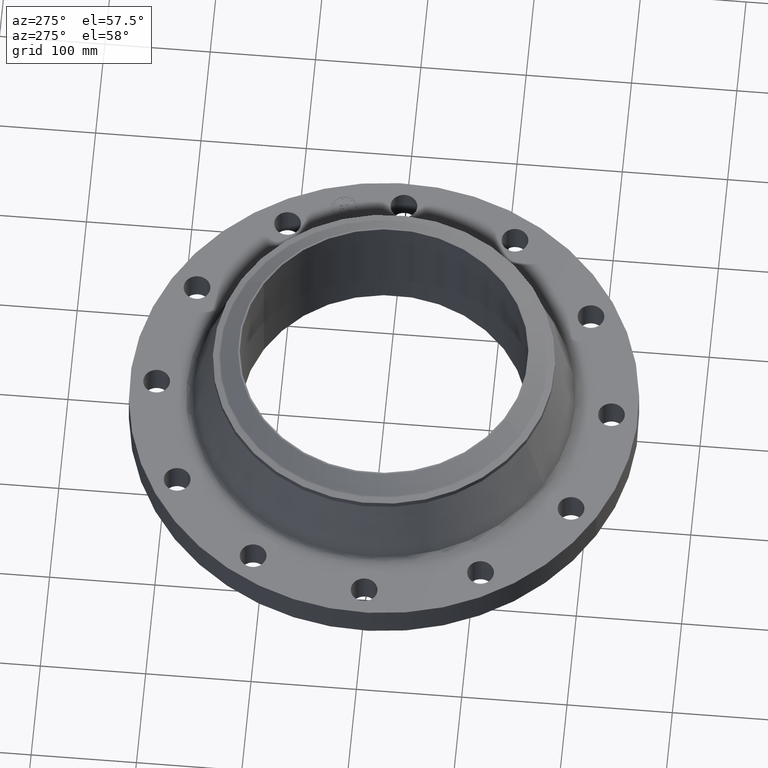
[diagram: clean part render]
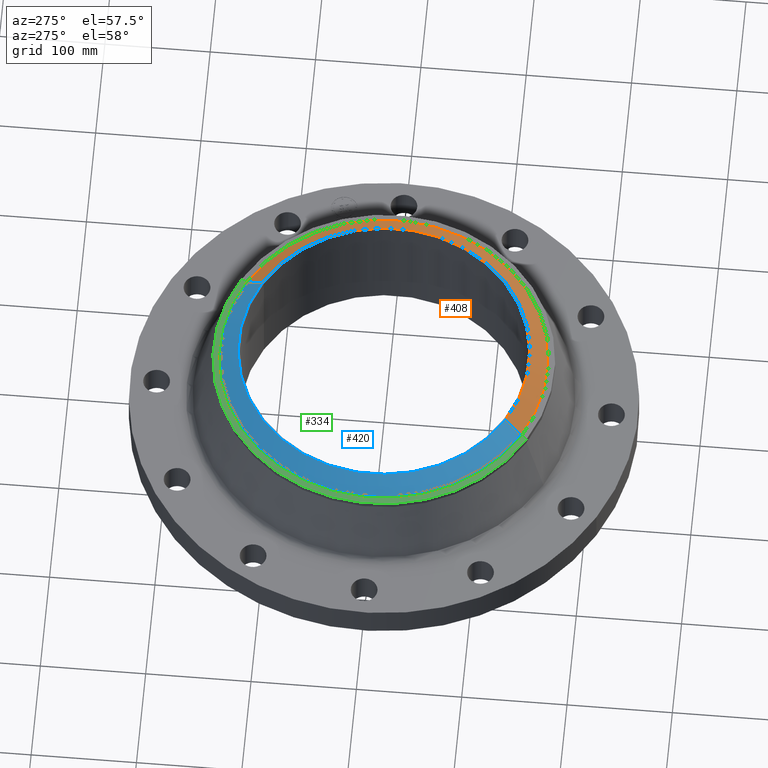
[diagram: same view with three faces highlighted in distinct colors, each labeled with its STEP entity id]
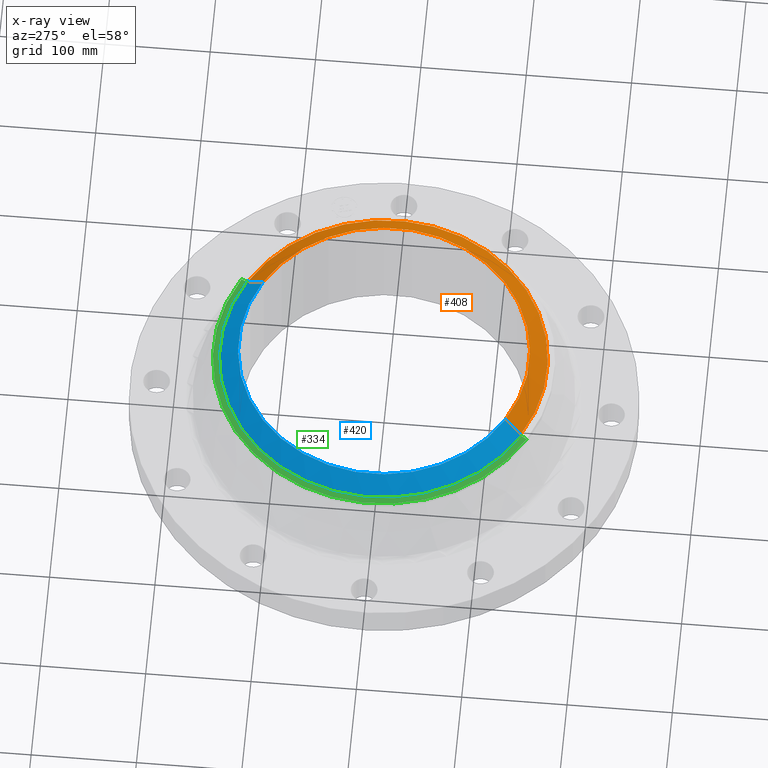
[diagram: x-ray of the same camera — body ghosted, the three highlighted faces saturated]
A machine part, auxiliary view with three faces highlighted in distinct colors.
The next image is the same camera in x-ray (body ghosted, the three faces saturated) — at least one of them is partly hidden behind the body in this view.
Their STEP definitions:

[orange] entity #408 — the highlighted conical surface has half-angle 52.5 deg.
#356=AXIS2_PLACEMENT_3D('Circle Axis2P3D',#354,#355,$) ;
#381=AXIS2_PLACEMENT_3D('Cone Axis2P3D',#378,#379,#380) ;
#399=AXIS2_PLACEMENT_3D('Circle Axis2P3D',#397,#398,$) ;
#344=CARTESIAN_POINT('Vertex',(-2.92484742452,-5.35389729846,3.99108306753)) ;
#351=CARTESIAN_POINT('Vertex',(2.92484742452,5.35389729846,3.99108306753)) ;
#354=CARTESIAN_POINT('Axis2P3D Location',(0.,0.,3.99108306753)) ;
#378=CARTESIAN_POINT('Axis2P3D Location',(0.,0.,4.50000000002)) ;
#383=CARTESIAN_POINT('Line Origine',(-2.76586189534,-5.06287623938,4.24554153377)) ;
#387=CARTESIAN_POINT('Vertex',(-2.60687636617,-4.7718551803,4.50000000002)) ;
#390=CARTESIAN_POINT('Line Origine',(2.76586189534,5.06287623938,4.24554153377)) ;
#394=CARTESIAN_POINT('Vertex',(2.60687636617,4.7718551803,4.50000000002)) ;
#397=CARTESIAN_POINT('Axis2P3D Location',(0.,0.,4.50000000002)) ;
#355=DIRECTION('Axis2P3D Direction',(0.,-0.,-0.0393700787402)) ;
#379=DIRECTION('Axis2P3D Direction',(-0.,-0.,-0.0393700787402)) ;
#380=DIRECTION('Axis2P3D XDirection',(-0.0188750212049,-0.0345504945626,0.)) ;
#384=DIRECTION('Vector Direction',(-0.014974561121,-0.02741075027,-0.023966985394)) ;
#391=DIRECTION('Vector Direction',(0.014974561121,0.02741075027,-0.023966985394)) ;
#398=DIRECTION('Axis2P3D Direction',(0.,-0.,-0.0393700787402)) ;
#385=VECTOR('Line Direction',#384,0.0393700787402) ;
#392=VECTOR('Line Direction',#391,0.0393700787402) ;
#403=ORIENTED_EDGE('',*,*,#389,.T.) ;
#404=ORIENTED_EDGE('',*,*,#358,.F.) ;
#405=ORIENTED_EDGE('',*,*,#396,.F.) ;
#406=ORIENTED_EDGE('',*,*,#401,.T.) ;
#408=ADVANCED_FACE('PartBody',(#407),#382,.T.) ;
#357=CIRCLE('generated circle',#356,6.10073345911) ;
#400=CIRCLE('generated circle',#399,5.43750000002) ;
#382=CONICAL_SURFACE('Cone',#381,5.43750000002,0.916297857297) ;
#358=EDGE_CURVE('',#352,#345,#357,.T.) ;
#389=EDGE_CURVE('',#388,#345,#386,.T.) ;
#396=EDGE_CURVE('',#395,#352,#393,.T.) ;
#401=EDGE_CURVE('',#395,#388,#400,.T.) ;
#402=EDGE_LOOP('',(#403,#404,#405,#406)) ;
#407=FACE_OUTER_BOUND('',#402,.T.) ;
#386=LINE('Line',#383,#385) ;
#393=LINE('Line',#390,#392) ;
#345=VERTEX_POINT('',#344) ;
#352=VERTEX_POINT('',#351) ;
#388=VERTEX_POINT('',#387) ;
#395=VERTEX_POINT('',#394) ;

[blue] entity #420 — the highlighted conical surface has half-angle 52.5 deg.
#368=AXIS2_PLACEMENT_3D('Circle Axis2P3D',#366,#367,$) ;
#381=AXIS2_PLACEMENT_3D('Cone Axis2P3D',#378,#379,#380) ;
#411=AXIS2_PLACEMENT_3D('Circle Axis2P3D',#409,#410,$) ;
#344=CARTESIAN_POINT('Vertex',(-2.92484742452,-5.35389729846,3.99108306753)) ;
#351=CARTESIAN_POINT('Vertex',(2.92484742452,5.35389729846,3.99108306753)) ;
#366=CARTESIAN_POINT('Axis2P3D Location',(0.,0.,3.99108306753)) ;
#378=CARTESIAN_POINT('Axis2P3D Location',(0.,0.,4.50000000002)) ;
#383=CARTESIAN_POINT('Line Origine',(-2.76586189534,-5.06287623938,4.24554153377)) ;
#387=CARTESIAN_POINT('Vertex',(-2.60687636617,-4.7718551803,4.50000000002)) ;
#390=CARTESIAN_POINT('Line Origine',(2.76586189534,5.06287623938,4.24554153377)) ;
#394=CARTESIAN_POINT('Vertex',(2.60687636617,4.7718551803,4.50000000002)) ;
#409=CARTESIAN_POINT('Axis2P3D Location',(0.,0.,4.50000000002)) ;
#367=DIRECTION('Axis2P3D Direction',(0.,-0.,-0.0393700787402)) ;
#379=DIRECTION('Axis2P3D Direction',(-0.,-0.,-0.0393700787402)) ;
#380=DIRECTION('Axis2P3D XDirection',(-0.0188750212049,-0.0345504945626,0.)) ;
#384=DIRECTION('Vector Direction',(-0.014974561121,-0.02741075027,-0.023966985394)) ;
#391=DIRECTION('Vector Direction',(0.014974561121,0.02741075027,-0.023966985394)) ;
#410=DIRECTION('Axis2P3D Direction',(0.,-0.,-0.0393700787402)) ;
#385=VECTOR('Line Direction',#384,0.0393700787402) ;
#392=VECTOR('Line Direction',#391,0.0393700787402) ;
#415=ORIENTED_EDGE('',*,*,#396,.T.) ;
#416=ORIENTED_EDGE('',*,*,#370,.F.) ;
#417=ORIENTED_EDGE('',*,*,#389,.F.) ;
#418=ORIENTED_EDGE('',*,*,#413,.T.) ;
#420=ADVANCED_FACE('PartBody',(#419),#382,.T.) ;
#369=CIRCLE('generated circle',#368,6.10073345911) ;
#412=CIRCLE('generated circle',#411,5.43750000002) ;
#382=CONICAL_SURFACE('Cone',#381,5.43750000002,0.916297857297) ;
#370=EDGE_CURVE('',#345,#352,#369,.T.) ;
#389=EDGE_CURVE('',#388,#345,#386,.T.) ;
#396=EDGE_CURVE('',#395,#352,#393,.T.) ;
#413=EDGE_CURVE('',#388,#395,#412,.T.) ;
#414=EDGE_LOOP('',(#415,#416,#417,#418)) ;
#419=FACE_OUTER_BOUND('',#414,.T.) ;
#386=LINE('Line',#383,#385) ;
#393=LINE('Line',#390,#392) ;
#345=VERTEX_POINT('',#344) ;
#352=VERTEX_POINT('',#351) ;
#388=VERTEX_POINT('',#387) ;
#395=VERTEX_POINT('',#394) ;

[green] entity #334 — the highlighted conical surface has half-angle 80 deg.
#282=AXIS2_PLACEMENT_3D('Circle Axis2P3D',#280,#281,$) ;
#295=AXIS2_PLACEMENT_3D('Cone Axis2P3D',#292,#293,#294) ;
#325=AXIS2_PLACEMENT_3D('Circle Axis2P3D',#323,#324,$) ;
#258=CARTESIAN_POINT('Vertex',(-3.05633780861,-5.59458883207,3.9283809506)) ;
#265=CARTESIAN_POINT('Vertex',(3.05633780861,5.59458883207,3.9283809506)) ;
#280=CARTESIAN_POINT('Axis2P3D Location',(0.,0.,3.9283809506)) ;
#292=CARTESIAN_POINT('Axis2P3D Location',(0.,0.,3.96715126594)) ;
#297=CARTESIAN_POINT('Line Origine',(3.00363039187,5.49810855288,3.94776610827)) ;
#301=CARTESIAN_POINT('Vertex',(2.95092297513,5.40162827369,3.96715126594)) ;
#308=CARTESIAN_POINT('Vertex',(-2.95092297513,-5.40162827369,3.96715126594)) ;
#311=CARTESIAN_POINT('Line Origine',(-3.00363039187,-5.49810855288,3.94776610827)) ;
#323=CARTESIAN_POINT('Axis2P3D Location',(0.,0.,3.96715126594)) ;
#281=DIRECTION('Axis2P3D Direction',(0.,0.,-0.0393700787402)) ;
#293=DIRECTION('Axis2P3D Direction',(-0.,-0.,-0.0393700787402)) ;
#294=DIRECTION('Axis2P3D XDirection',(-0.0188750212049,-0.0345504945626,0.)) ;
#298=DIRECTION('Vector Direction',(0.0185882672208,0.0340255949157,-0.00683654242783)) ;
#312=DIRECTION('Vector Direction',(-0.0185882672208,-0.0340255949157,-0.00683654242783)) ;
#324=DIRECTION('Axis2P3D Direction',(0.,-0.,-0.0393700787402)) ;
#299=VECTOR('Line Direction',#298,0.0393700787402) ;
#313=VECTOR('Line Direction',#312,0.0393700787402) ;
#329=ORIENTED_EDGE('',*,*,#315,.F.) ;
#330=ORIENTED_EDGE('',*,*,#327,.T.) ;
#331=ORIENTED_EDGE('',*,*,#303,.T.) ;
#332=ORIENTED_EDGE('',*,*,#284,.F.) ;
#334=ADVANCED_FACE('PartBody',(#333),#296,.T.) ;
#283=CIRCLE('generated circle',#282,6.37500000003) ;
#326=CIRCLE('generated circle',#325,6.15512261553) ;
#296=CONICAL_SURFACE('Cone',#295,6.15512261553,1.3962634016) ;
#284=EDGE_CURVE('',#259,#266,#283,.T.) ;
#303=EDGE_CURVE('',#302,#266,#300,.T.) ;
#315=EDGE_CURVE('',#309,#259,#314,.T.) ;
#327=EDGE_CURVE('',#309,#302,#326,.T.) ;
#328=EDGE_LOOP('',(#329,#330,#331,#332)) ;
#333=FACE_OUTER_BOUND('',#328,.T.) ;
#300=LINE('Line',#297,#299) ;
#314=LINE('Line',#311,#313) ;
#259=VERTEX_POINT('',#258) ;
#266=VERTEX_POINT('',#265) ;
#302=VERTEX_POINT('',#301) ;
#309=VERTEX_POINT('',#308) ;